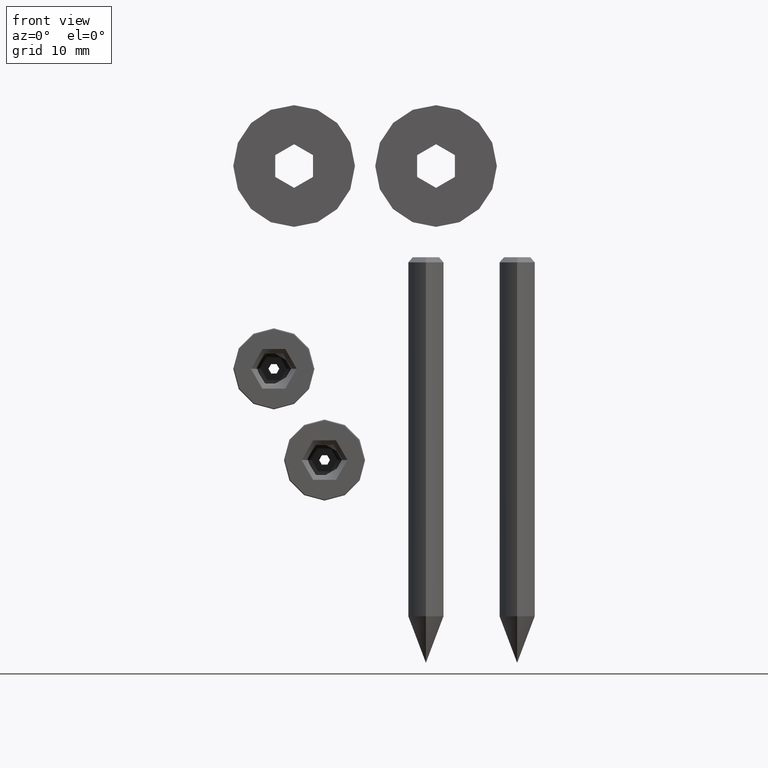
[diagram: clean part render]
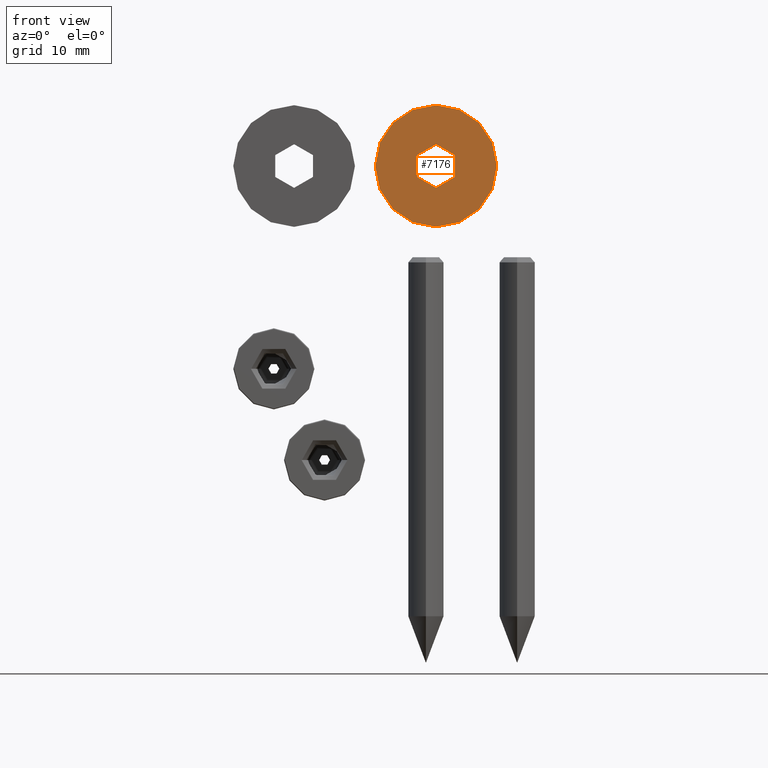
[diagram: same view with one face highlighted and labeled with its STEP entity id]
A machine part, front view. The second image highlights one B-rep face of the part: STEP entity #7176.
In plain terms, the highlighted planar face has unit normal (0, 1, 0).
Its self-contained STEP definition (entity closure, byte-faithful):
#702 = AXIS2_PLACEMENT_3D ( 'NONE', #17522, #23860, #11277 ) ;
#1320 = CARTESIAN_POINT ( 'NONE',  ( 0.000000000000000000, -0.5500000000000000444, 0.000000000000000000 ) ) ;
#2010 = AXIS2_PLACEMENT_3D ( 'NONE', #3996, #14977, #8455 ) ;
#2479 = EDGE_LOOP ( 'NONE', ( #20194, #7116 ) ) ;
#2839 = PLANE ( 'NONE',  #702 ) ;
#3996 = CARTESIAN_POINT ( 'NONE',  ( 0.000000000000000000, -0.5500000000000000444, 0.000000000000000000 ) ) ;
#6746 = EDGE_CURVE ( 'NONE', #22182, #6791, #14521, .T. ) ;
#6791 = VERTEX_POINT ( 'NONE', #8065 ) ;
#7116 = ORIENTED_EDGE ( 'NONE', *, *, #6746, .F. ) ;
#7176 = ADVANCED_FACE ( 'NONE', ( #16465, #7239 ), #2839, .F. ) ;
#7239 = FACE_BOUND ( 'NONE', #9666, .T. ) ;
#8065 = CARTESIAN_POINT ( 'NONE',  ( 0.000000000000000000, -0.5500000000000000444, -6.000000000000000888 ) ) ;
#8455 = DIRECTION ( 'NONE',  ( 0.000000000000000000, 0.000000000000000000, 1.000000000000000000 ) ) ;
#8663 = CARTESIAN_POINT ( 'NONE',  ( 0.000000000000000000, -0.5500000000000000444, 0.000000000000000000 ) ) ;
#8739 = EDGE_CURVE ( 'NONE', #20010, #13234, #14838, .T. ) ;
#9011 = AXIS2_PLACEMENT_3D ( 'NONE', #8663, #23380, #10451 ) ;
#9666 = EDGE_LOOP ( 'NONE', ( #21712, #13739 ) ) ;
#9837 = EDGE_CURVE ( 'NONE', #13234, #20010, #16802, .T. ) ;
#9936 = CARTESIAN_POINT ( 'NONE',  ( 7.347880794884120722E-16, -0.5500000000000000444, 6.000000000000000888 ) ) ;
#10451 = DIRECTION ( 'NONE',  ( 0.000000000000000000, 0.000000000000000000, 1.000000000000000000 ) ) ;
#11193 = AXIS2_PLACEMENT_3D ( 'NONE', #22479, #26517, #13913 ) ;
#11277 = DIRECTION ( 'NONE',  ( 0.000000000000000000, -0.000000000000000000, 1.000000000000000000 ) ) ;
#13234 = VERTEX_POINT ( 'NONE', #20686 ) ;
#13296 = CARTESIAN_POINT ( 'NONE',  ( 0.000000000000000000, -0.5500000000000000444, -2.149999999999999911 ) ) ;
#13739 = ORIENTED_EDGE ( 'NONE', *, *, #9837, .T. ) ;
#13913 = DIRECTION ( 'NONE',  ( 0.000000000000000000, 0.000000000000000000, 1.000000000000000000 ) ) ;
#14521 = CIRCLE ( 'NONE', #22954, 6.000000000000000888 ) ;
#14838 = CIRCLE ( 'NONE', #11193, 2.149999999999999911 ) ;
#14977 = DIRECTION ( 'NONE',  ( 0.000000000000000000, 1.000000000000000000, 0.000000000000000000 ) ) ;
#15593 = EDGE_CURVE ( 'NONE', #6791, #22182, #26791, .T. ) ;
#16465 = FACE_OUTER_BOUND ( 'NONE', #2479, .T. ) ;
#16802 = CIRCLE ( 'NONE', #2010, 2.149999999999999911 ) ;
#17522 = CARTESIAN_POINT ( 'NONE',  ( 0.000000000000000000, -0.5500000000000000444, 0.000000000000000000 ) ) ;
#18543 = DIRECTION ( 'NONE',  ( 0.000000000000000000, 0.000000000000000000, 1.000000000000000000 ) ) ;
#20010 = VERTEX_POINT ( 'NONE', #13296 ) ;
#20194 = ORIENTED_EDGE ( 'NONE', *, *, #15593, .F. ) ;
#20686 = CARTESIAN_POINT ( 'NONE',  ( 2.632990618166809235E-16, -0.5500000000000000444, 2.149999999999999911 ) ) ;
#21712 = ORIENTED_EDGE ( 'NONE', *, *, #8739, .T. ) ;
#22182 = VERTEX_POINT ( 'NONE', #9936 ) ;
#22479 = CARTESIAN_POINT ( 'NONE',  ( 0.000000000000000000, -0.5500000000000000444, 0.000000000000000000 ) ) ;
#22954 = AXIS2_PLACEMENT_3D ( 'NONE', #1320, #26183, #18543 ) ;
#23380 = DIRECTION ( 'NONE',  ( 0.000000000000000000, 1.000000000000000000, 0.000000000000000000 ) ) ;
#23860 = DIRECTION ( 'NONE',  ( 0.000000000000000000, 1.000000000000000000, 0.000000000000000000 ) ) ;
#26183 = DIRECTION ( 'NONE',  ( 0.000000000000000000, 1.000000000000000000, 0.000000000000000000 ) ) ;
#26517 = DIRECTION ( 'NONE',  ( 0.000000000000000000, 1.000000000000000000, 0.000000000000000000 ) ) ;
#26791 = CIRCLE ( 'NONE', #9011, 6.000000000000000888 ) ;